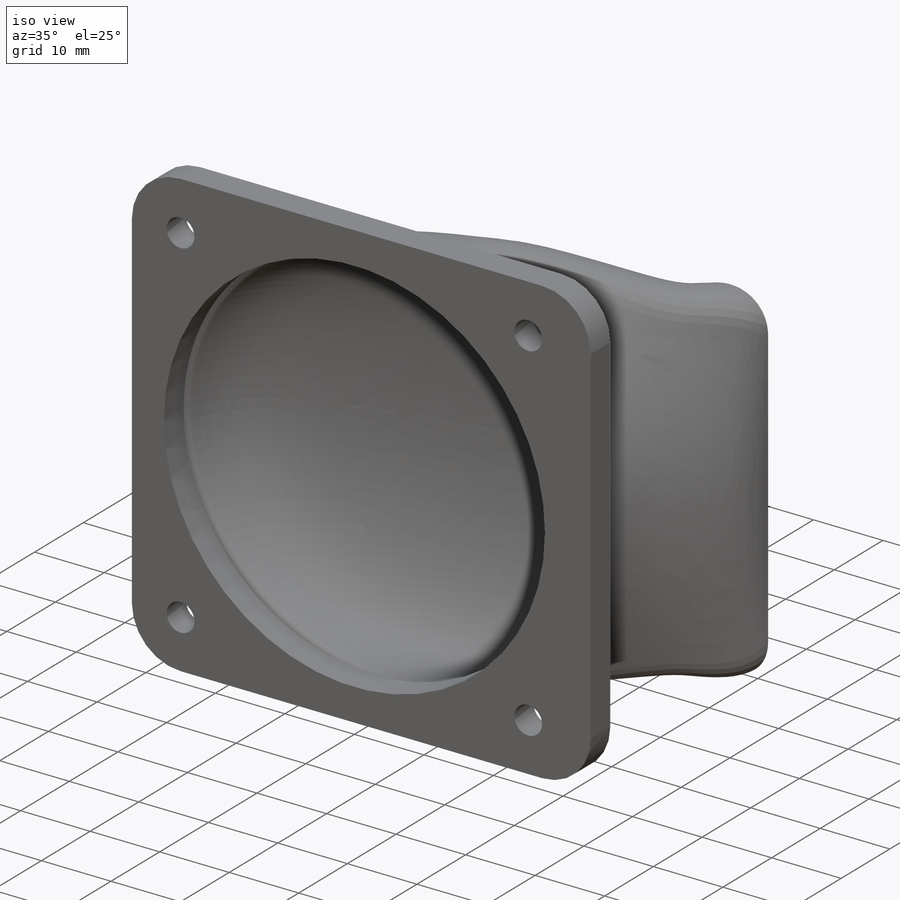
[diagram: iso view]
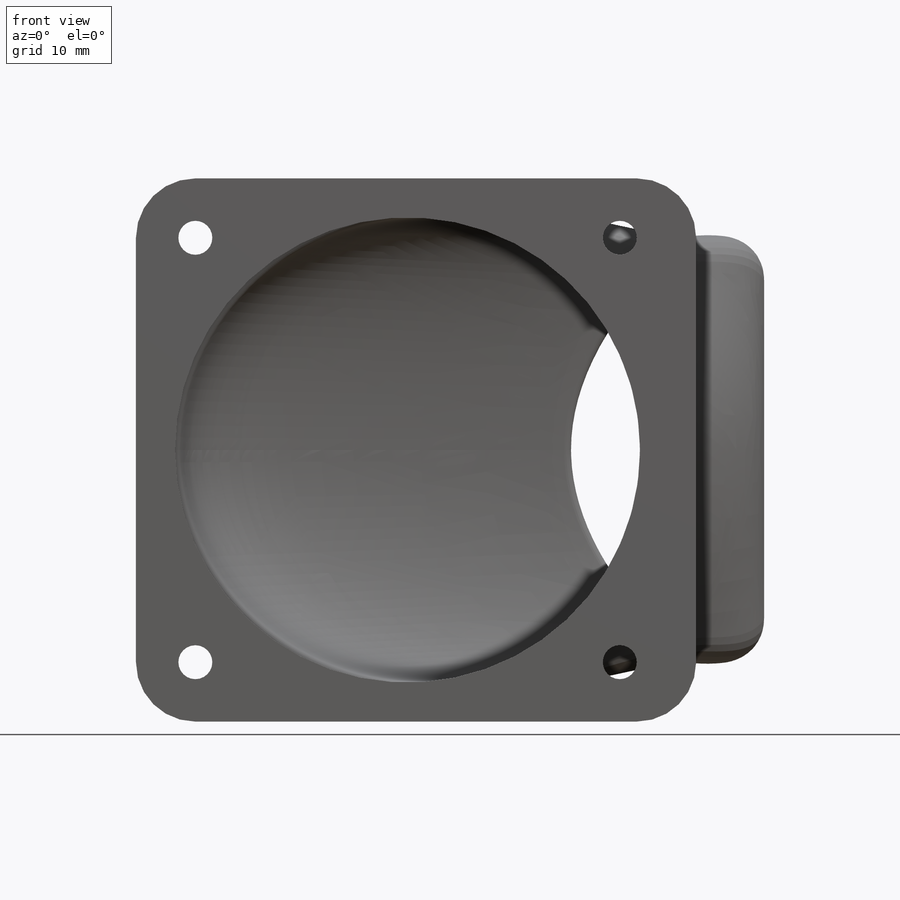
[diagram: front view]
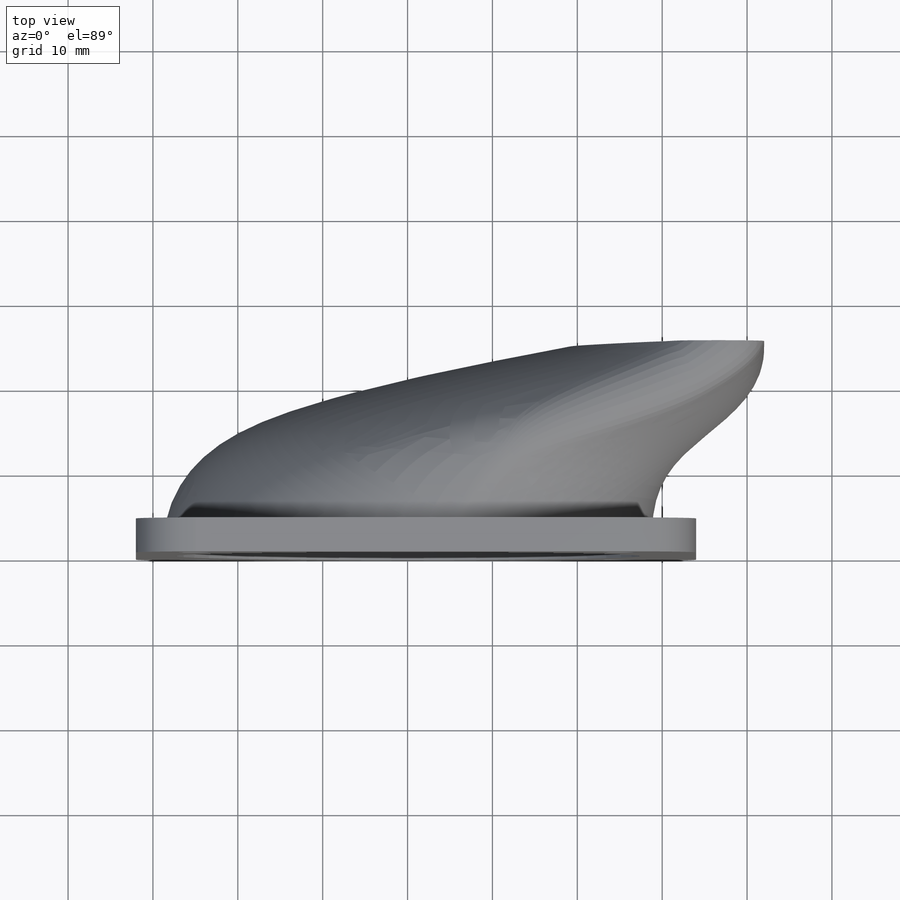
[diagram: top view]
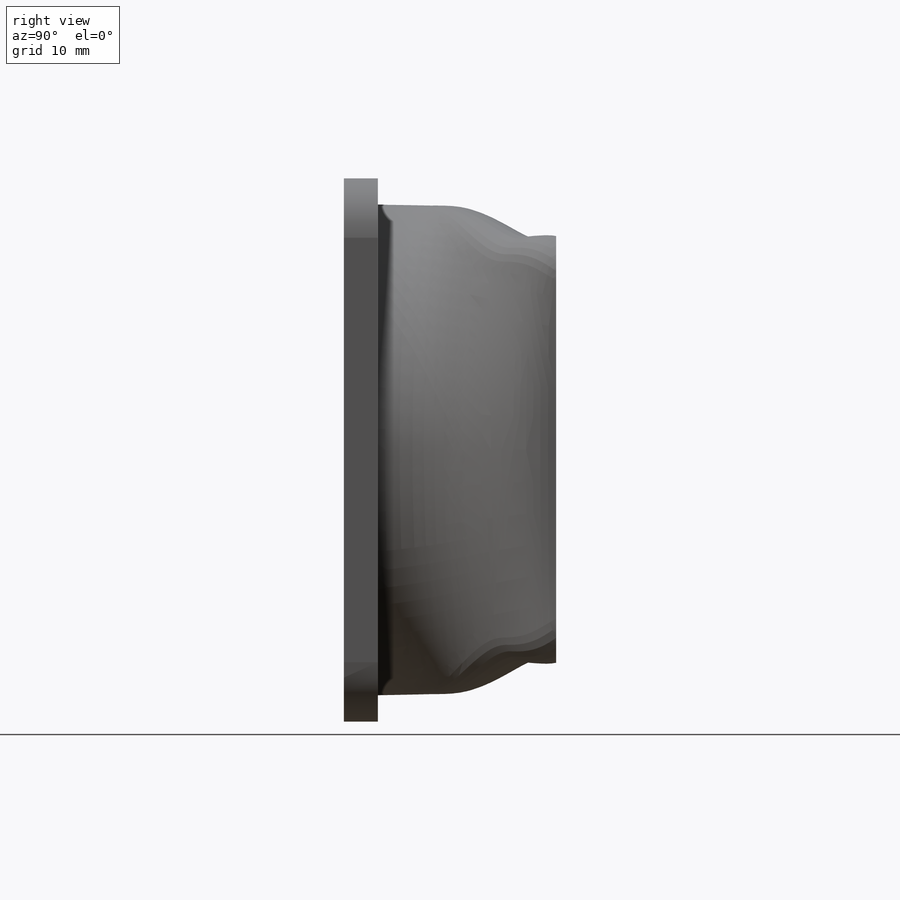
[diagram: right view]
SOLIDWORKS PART (.sldprt)
format: sldprt  version: not decoded by parser v0  size: 586,240 bytes
history: native  units: mm
features: sketch x8, plane x4, shell x4, cut_extrude x3, material x1, fillet x1, extrude x1 (+9 scaffold rows collapsed)
feature tree (31):
  scaffold x9  (default folders/planes/origin — collapsed)
  material  "Materiale <non specificato>"
  plane  "Piano frontale"
  plane  "Piano superiore"
  plane  "Piano destro"
  sketch  "Schizzo1"  dims[D1=~48.331055mm]
  plane  "Piano1"  Offset=25mm
  sketch  "Schizzo2"  dims[D1=5.0mm D2=8.0mm]
  sketch  "Schizzo3"  dims[D1=~144.879152deg]
  sketch  "Schizzo4"
  fillet  "Raccordo1"  Radius=4mm
  shell  "Svuota1"  Thickness=1.5mm
  shell  "Raccordo2"  Thickness=1mm
  sketch  "Schizzo5"
  cut_extrude  "Taglio-Estrusione1"  Depth=1.5mm
  sketch  "Schizzo6"  dims[D4=66.0mm D5=64.0mm D1=3.0mm D2=3.0mm D3=3.0mm]
  extrude  "Estrusione-Estrusione1"  Depth=4mm
  sketch  "Schizzo7"
  cut_extrude  "Taglio-Estrusione2"  Depth=4mm
  sketch  "Schizzo8"  dims[c1.D1=4.0mm c1.D5=~2.231271mm c2.D1=25.0mm c2.D2=25.0mm c2.D3=25.0mm c2.D4=25.0mm]
  cut_extrude  "Taglio-Estrusione3"  Depth=4mm
  shell  "Raccordo3"  Thickness=7mm
  shell  "Raccordo4"  Thickness=1mm
decode coverage: 14 of 17 modeling features carry decoded parameters
note: ~ marks probable driven/reference dimensions
note: suppression state not decoded; provenance and decode notes live in map.json
